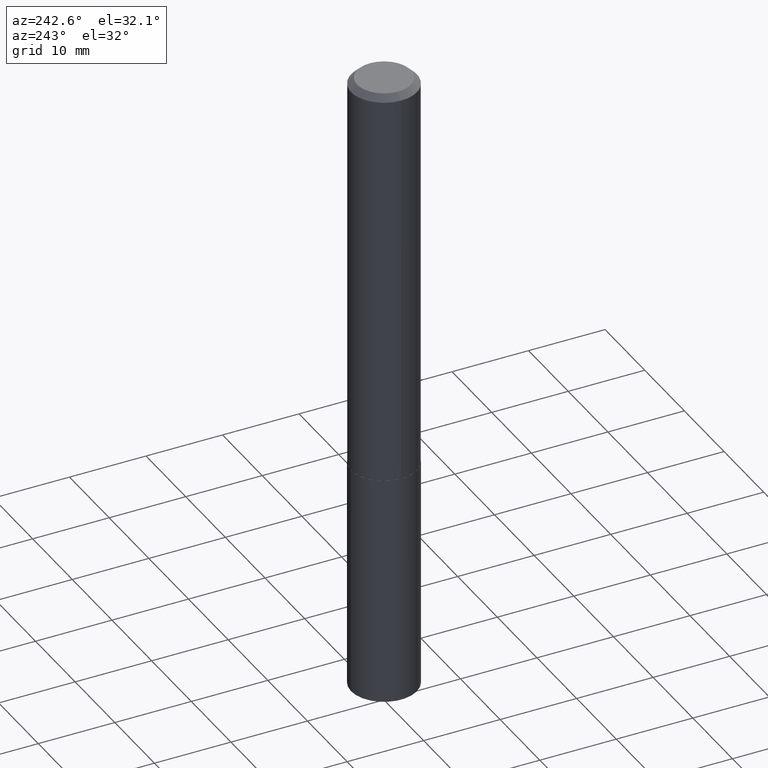
[diagram: clean part render]
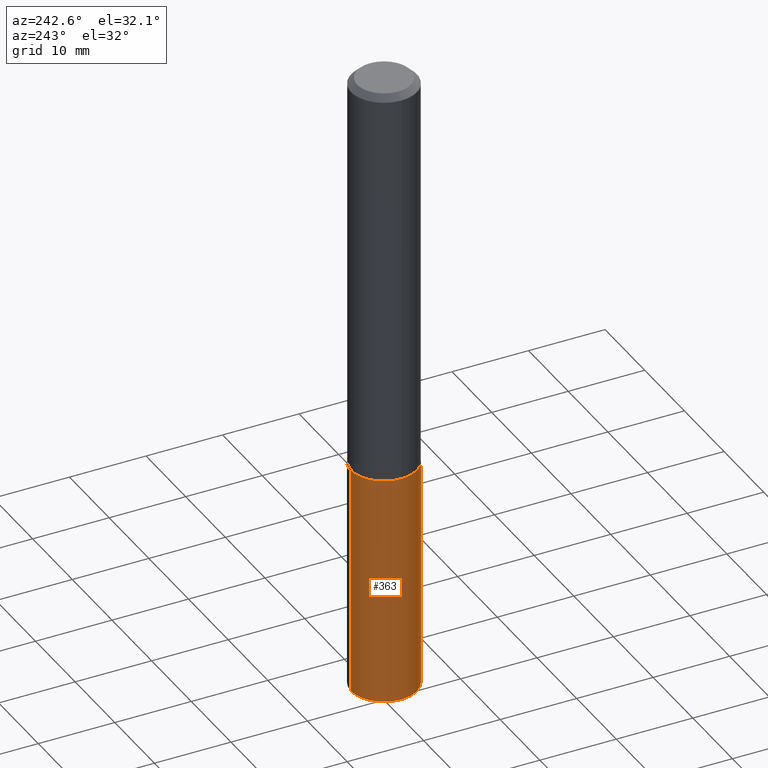
[diagram: same view with one face highlighted and labeled with its STEP entity id]
A machine part, auxiliary view. The second image highlights one B-rep face of the part: STEP entity #363.
In plain terms, the highlighted cylindrical surface (partial cylindrical patch) has radius 4.3002 mm, axis along (-0, 0, 1).
Its self-contained STEP definition (entity closure, byte-faithful):
#1 = DIRECTION ( 'NONE',  ( -6.982962677686265922E-15, -1.000000000000000000, 3.227227399485248397E-15 ) ) ;
#7 = CARTESIAN_POINT ( 'NONE',  ( -1.182215581332204746E-15, -0.1693000000000113858, -3.261736201721411099 ) ) ;
#12 = AXIS2_PLACEMENT_3D ( 'NONE', #237, #207, #178 ) ;
#13 = ORIENTED_EDGE ( 'NONE', *, *, #306, .T. ) ;
#19 = AXIS2_PLACEMENT_3D ( 'NONE', #97, #122, #1 ) ;
#32 = VECTOR ( 'NONE', #309, 39.37007874015748143 ) ;
#44 = EDGE_CURVE ( 'NONE', #94, #151, #238, .T. ) ;
#74 = DIRECTION ( 'NONE',  ( -2.445454975221157966E-29, 3.491501145570772643E-15, 1.000000000000000000 ) ) ;
#77 = DIRECTION ( 'NONE',  ( -2.445454975221157966E-29, 3.491501145570772643E-15, 1.000000000000000000 ) ) ;
#79 = EDGE_CURVE ( 'NONE', #357, #151, #323, .T. ) ;
#94 = VERTEX_POINT ( 'NONE', #7 ) ;
#97 = CARTESIAN_POINT ( 'NONE',  ( 7.976457664901892933E-29, -1.138831466710772650E-14, -3.261736201721411543 ) ) ;
#103 = CYLINDRICAL_SURFACE ( 'NONE', #333, 0.1693000000000000338 ) ;
#121 = EDGE_LOOP ( 'NONE', ( #157, #13, #129, #148 ) ) ;
#122 = DIRECTION ( 'NONE',  ( -2.445454975221157966E-29, 3.491501145570772643E-15, 1.000000000000000000 ) ) ;
#129 = ORIENTED_EDGE ( 'NONE', *, *, #44, .T. ) ;
#131 = CARTESIAN_POINT ( 'NONE',  ( 1.202948851641929333E-15, 0.1692999999999886263, -3.261736201721411987 ) ) ;
#148 = ORIENTED_EDGE ( 'NONE', *, *, #79, .F. ) ;
#151 = VERTEX_POINT ( 'NONE', #364 ) ;
#156 = CARTESIAN_POINT ( 'NONE',  ( 1.202948851641900145E-15, 0.1692999999999927896, -2.070900000000000851 ) ) ;
#157 = ORIENTED_EDGE ( 'NONE', *, *, #347, .F. ) ;
#164 = CIRCLE ( 'NONE', #19, 0.1693000000000000338 ) ;
#178 = DIRECTION ( 'NONE',  ( -6.982962677686265922E-15, -1.000000000000000000, 3.227227399485248397E-15 ) ) ;
#180 = LINE ( 'NONE', #156, #32 ) ;
#207 = DIRECTION ( 'NONE',  ( -2.445454975221157966E-29, 3.491501145570772643E-15, 1.000000000000000000 ) ) ;
#219 = CARTESIAN_POINT ( 'NONE',  ( 5.064321350728799708E-29, -7.230508704610271415E-15, -2.070900000000000407 ) ) ;
#229 = VERTEX_POINT ( 'NONE', #131 ) ;
#237 = CARTESIAN_POINT ( 'NONE',  ( 5.064321350728799708E-29, -7.230508704610271415E-15, -2.070900000000000407 ) ) ;
#238 = LINE ( 'NONE', #315, #298 ) ;
#284 = DIRECTION ( 'NONE',  ( -6.982962677686265922E-15, -1.000000000000000000, 3.227227399485248397E-15 ) ) ;
#287 = FACE_OUTER_BOUND ( 'NONE', #121, .T. ) ;
#298 = VECTOR ( 'NONE', #77, 39.37007874015748143 ) ;
#306 = EDGE_CURVE ( 'NONE', #229, #94, #164, .T. ) ;
#309 = DIRECTION ( 'NONE',  ( -2.445454975221157966E-29, 3.491501145570772643E-15, 1.000000000000000000 ) ) ;
#315 = CARTESIAN_POINT ( 'NONE',  ( -1.182215581332234328E-15, -0.1693000000000072502, -2.070899999999999963 ) ) ;
#320 = CARTESIAN_POINT ( 'NONE',  ( 1.202948851641929530E-15, 0.1692999999999928173, -2.070900000000000851 ) ) ;
#323 = CIRCLE ( 'NONE', #12, 0.1693000000000000338 ) ;
#333 = AXIS2_PLACEMENT_3D ( 'NONE', #219, #74, #284 ) ;
#347 = EDGE_CURVE ( 'NONE', #229, #357, #180, .T. ) ;
#357 = VERTEX_POINT ( 'NONE', #320 ) ;
#363 = ADVANCED_FACE ( 'NONE', ( #287 ), #103, .T. ) ;
#364 = CARTESIAN_POINT ( 'NONE',  ( -1.182215581332234328E-15, -0.1693000000000072502, -2.070899999999999963 ) ) ;